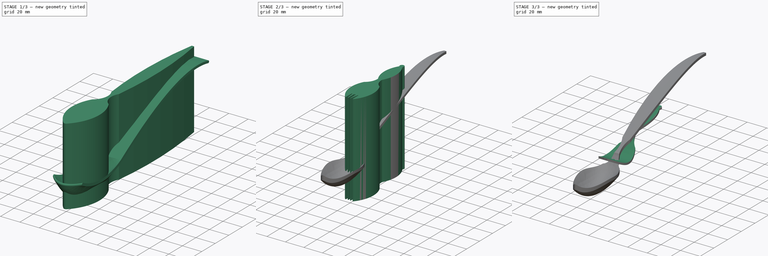
[diagram: build sequence overview — one tinted view per stage of 3, left to right]
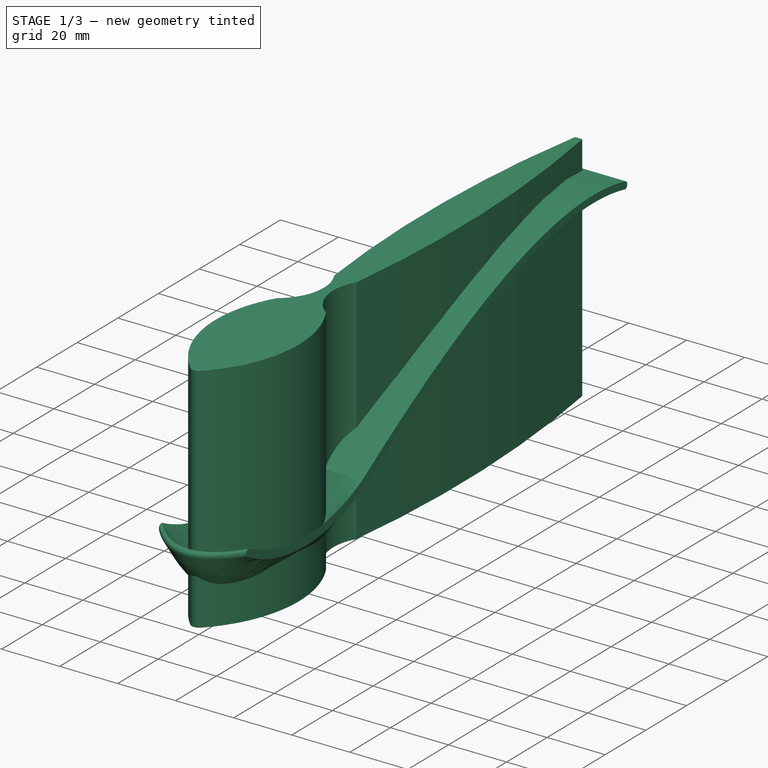
[diagram: stage 1 of 3 — iso view after this stage's code; geometry added in this stage tinted green]
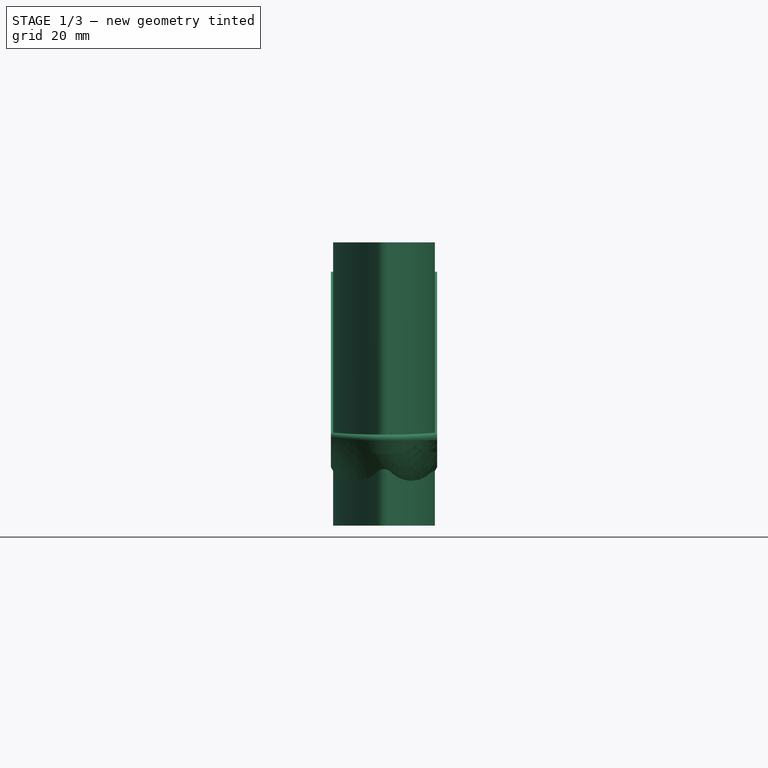
[diagram: stage 1 of 3 — front view after this stage's code; geometry added in this stage tinted green]
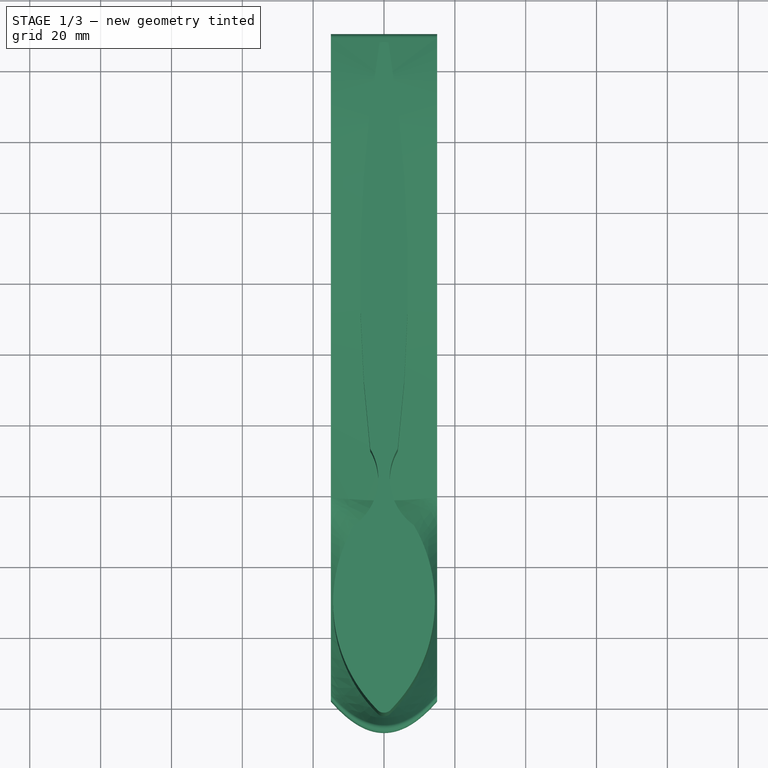
[diagram: stage 1 of 3 — top view after this stage's code; geometry added in this stage tinted green]
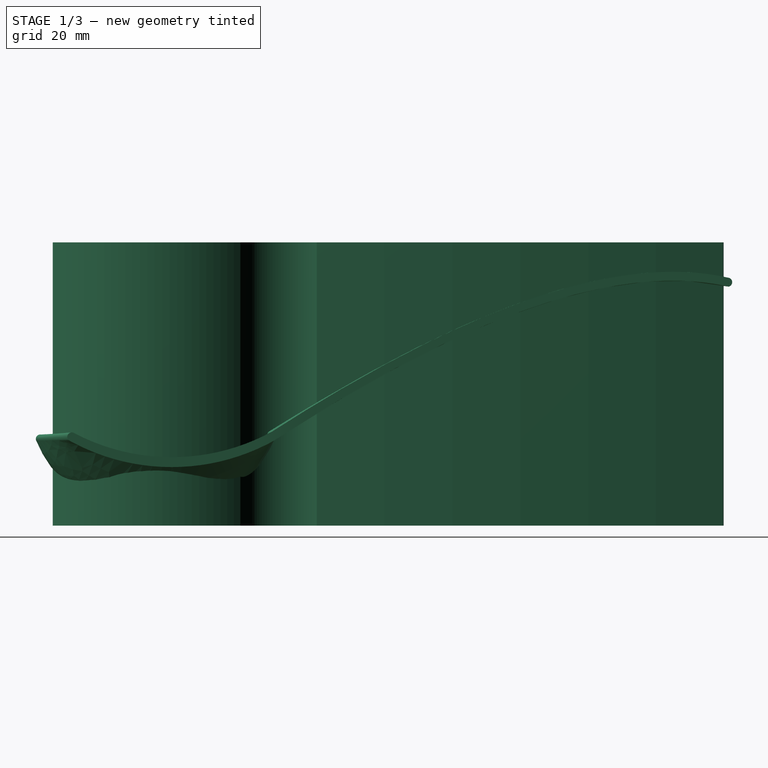
[diagram: stage 1 of 3 — right view after this stage's code; geometry added in this stage tinted green]
FCSTD DOCUMENT  (FreeCAD 0.21RUnknown)
Label: part15
License: All rights reserved
LicenseURL: http://en.wikipedia.org/wiki/All_rights_reserved
objects: Sketcher::SketchObject×6, Part::Extrusion×4, Part::MultiCommon×2, Part::Loft×1
note: 13 computed .brp shape members not serialized (recipe doc carries the construction recipe); baked Part::Feature solids carry a one-line shape summary decoded from their .brp

FEATURE [Sketcher::SketchObject] Sketch002  label="right"
  FullyConstrained = false
  Placement = pos=(-15,0,0) rot=(0.57735,0.57735,0.57735;2.0944rad)
  sketch-geometry (18):
    g0: ArcOfCircle CenterX=-28.8376 CenterY=52.0292 CenterZ=0 NormalX=0 NormalY=0 NormalZ=1 AngleXU=0 Radius=59.4865 StartAngle=4.20628 EndAngle=5.2185
    g1-g4: Circle x4 (B-spline internal-alignment scaffolding for g5; pole/knot coordinates omitted)
    g5: BSplineCurve PolesCount=4 KnotsCount=2 Degree=3 IsPeriodic=0
    g6: GeomPoint X=0 Y=0 Z=0
    g7: GeomPoint X=128.407 Y=43.4848 Z=0
    g8: ArcOfCircle CenterX=-28.8376 CenterY=54.5292 CenterZ=0 NormalX=0 NormalY=0 NormalZ=1 AngleXU=0 Radius=59.1852 StartAngle=4.22634 EndAngle=5.20923
    g9-g12: Circle x4 (B-spline internal-alignment scaffolding for g13; pole/knot coordinates omitted)
    g13: BSplineCurve PolesCount=4 KnotsCount=2 Degree=3 IsPeriodic=0
    g14: GeomPoint X=-0.626922 Y=2.5 Z=0
    g15: GeomPoint X=128.407 Y=45.9848 Z=0
    g16: ArcOfCircle CenterX=-57.0693 CenterY=1.09335 CenterZ=0 NormalX=0 NormalY=0 NormalZ=1 AngleXU=0 Radius=1.25006 StartAngle=1.08474 EndAngle=4.20628
    g17: ArcOfCircle CenterX=128.1 CenterY=44.7348 CenterZ=0 NormalX=0 NormalY=0 NormalZ=1 AngleXU=0 Radius=1.28724 StartAngle=4.95352 EndAngle=7.61285
  constraints (31):
    c: PointOnObject(g0,g-1)
    c: Coincident(g0,g-1)
    c: Weight(g1) = 1
    c: Coincident(g5,g0)
    c: Equal(g1,g2)
    c: Equal(g1,g3)
    c: Equal(g1,g4)
    c: InternalAlignment(g1-g4 -> g5) x4
    c: InternalAlignment(g6,g5)
    c: InternalAlignment(g7,g5)
    c: Weight(g9) = 1
    c: Coincident(g13,g8)
    c: Equal(g9,g10)
    c: Equal(g9,g11)
    c: Equal(g9,g12)
    c: InternalAlignment(g9-g12 -> g13) x4
    c: InternalAlignment(g14,g13)
    c: InternalAlignment(g15,g13)
    c: Tangent(g16,g8) = 1.5708
    c: Tangent(g16,g0) = -1.5708
    c: Distance(g0,g8) = 2.5
    c: DistanceY(g0,g8) = 2.5
    c: Coincident(g17,g5)
    c: Coincident(g17,g13)
    c: DistanceY(g5,g13) = 2.5
    c: Vertical(g5,g13)
    c: DistanceY(g3,g11) = 2.5
    c: DistanceY(g2,g10) = 2.5
    c: Vertical(g10,g2)
    c: Vertical(g0,g8)
    c: DistanceY(g0,g8) = 2.5
FEATURE [Sketcher::SketchObject] Sketch003  label="middle"
  FullyConstrained = false
  Placement = pos=(0,0,0) rot=(0.57735,0.57735,0.57735;2.0944rad)
  sketch-geometry (18):
    g0: ArcOfCircle CenterX=-33.556 CenterY=14.123 CenterZ=0 NormalX=0 NormalY=0 NormalZ=1 AngleXU=0 Radius=36.4069 StartAngle=3.53997 EndAngle=5.88481
    g1-g4: Circle x4 (B-spline internal-alignment scaffolding for g5; pole/knot coordinates omitted)
    g5: BSplineCurve PolesCount=4 KnotsCount=2 Degree=3 IsPeriodic=0
    g6: GeomPoint X=0 Y=0 Z=0
    g7: GeomPoint X=128.407 Y=43.4848 Z=0
    g8: ArcOfCircle CenterX=-33.556 CenterY=16.623 CenterZ=0 NormalX=0 NormalY=0 NormalZ=1 AngleXU=0 Radius=34.9488 StartAngle=3.60366 EndAngle=5.86719
    g9-g12: Circle x4 (B-spline internal-alignment scaffolding for g13; pole/knot coordinates omitted)
    g13: BSplineCurve PolesCount=4 KnotsCount=2 Degree=3 IsPeriodic=0
    g14: GeomPoint X=-1.58782 Y=2.5 Z=0
    g15: GeomPoint X=128.407 Y=45.9848 Z=0
    g16: ArcOfCircle CenterX=-65.9592 CenterY=0.485146 CenterZ=0 NormalX=0 NormalY=0 NormalZ=1 AngleXU=0 Radius=1.25063 StartAngle=0.462071 EndAngle=3.53997
    g17: ArcOfCircle CenterX=128.1 CenterY=44.7348 CenterZ=0 NormalX=0 NormalY=0 NormalZ=1 AngleXU=0 Radius=1.28724 StartAngle=4.95352 EndAngle=7.61285
  constraints (31):
    c: PointOnObject(g0,g-1)
    c: Coincident(g0,g-1)
    c: Weight(g1) = 1
    c: Coincident(g5,g0)
    c: Equal(g1,g2)
    c: Equal(g1,g3)
    c: Equal(g1,g4)
    c: InternalAlignment(g1-g4 -> g5) x4
    c: InternalAlignment(g6,g5)
    c: InternalAlignment(g7,g5)
    c: Weight(g9) = 1
    c: Coincident(g13,g8)
    c: Equal(g9,g10)
    c: Equal(g9,g11)
    c: Equal(g9,g12)
    c: InternalAlignment(g9-g12 -> g13) x4
    c: InternalAlignment(g14,g13)
    c: InternalAlignment(g15,g13)
    c: Tangent(g16,g8) = 1.5708
    c: Tangent(g16,g0) = -1.5708
    c: Distance(g0,g8) = 2.5
    c: DistanceY(g0,g8) = 2.5
    c: Coincident(g17,g5)
    c: Coincident(g17,g13)
    c: DistanceY(g5,g13) = 2.5
    c: Vertical(g5,g13)
    c: DistanceY(g3,g11) = 2.5
    c: DistanceY(g2,g10) = 2.5
    c: Vertical(g10,g2)
    c: Vertical(g0,g8)
    c: DistanceY(g0,g8) = 2.5
FEATURE [Sketcher::SketchObject] Sketch004  label="left"
  FullyConstrained = false
  Placement = pos=(15,0,0) rot=(0.57735,0.57735,0.57735;2.0944rad)
  sketch-geometry (18):
    g0: ArcOfCircle CenterX=-28.8376 CenterY=52.0292 CenterZ=0 NormalX=0 NormalY=0 NormalZ=1 AngleXU=0 Radius=59.4865 StartAngle=4.20628 EndAngle=5.2185
    g1-g4: Circle x4 (B-spline internal-alignment scaffolding for g5; pole/knot coordinates omitted)
    g5: BSplineCurve PolesCount=4 KnotsCount=2 Degree=3 IsPeriodic=0
    g6: GeomPoint X=0 Y=0 Z=0
    g7: GeomPoint X=128.407 Y=43.4848 Z=0
    g8: ArcOfCircle CenterX=-28.8376 CenterY=54.5292 CenterZ=0 NormalX=0 NormalY=0 NormalZ=1 AngleXU=0 Radius=59.1852 StartAngle=4.22634 EndAngle=5.20923
    g9-g12: Circle x4 (B-spline internal-alignment scaffolding for g13; pole/knot coordinates omitted)
    g13: BSplineCurve PolesCount=4 KnotsCount=2 Degree=3 IsPeriodic=0
    g14: GeomPoint X=-0.626922 Y=2.5 Z=0
    g15: GeomPoint X=128.407 Y=45.9848 Z=0
    g16: ArcOfCircle CenterX=-57.0693 CenterY=1.09335 CenterZ=0 NormalX=0 NormalY=0 NormalZ=1 AngleXU=0 Radius=1.25006 StartAngle=1.08474 EndAngle=4.20628
    g17: ArcOfCircle CenterX=128.1 CenterY=44.7348 CenterZ=0 NormalX=0 NormalY=0 NormalZ=1 AngleXU=0 Radius=1.28724 StartAngle=4.95352 EndAngle=7.61285
  constraints (31):
    c: PointOnObject(g0,g-1)
    c: Coincident(g0,g-1)
    c: Weight(g1) = 1
    c: Coincident(g5,g0)
    c: Equal(g1,g2)
    c: Equal(g1,g3)
    c: Equal(g1,g4)
    c: InternalAlignment(g1-g4 -> g5) x4
    c: InternalAlignment(g6,g5)
    c: InternalAlignment(g7,g5)
    c: Weight(g9) = 1
    c: Coincident(g13,g8)
    c: Equal(g9,g10)
    c: Equal(g9,g11)
    c: Equal(g9,g12)
    c: InternalAlignment(g9-g12 -> g13) x4
    c: InternalAlignment(g14,g13)
    c: InternalAlignment(g15,g13)
    c: Tangent(g16,g8) = 1.5708
    c: Tangent(g16,g0) = -1.5708
    c: Distance(g0,g8) = 2.5
    c: DistanceY(g0,g8) = 2.5
    c: Coincident(g17,g5)
    c: Coincident(g17,g13)
    c: DistanceY(g5,g13) = 2.5
    c: Vertical(g5,g13)
    c: DistanceY(g3,g11) = 2.5
    c: DistanceY(g2,g10) = 2.5
    c: Vertical(g10,g2)
    c: Vertical(g0,g8)
    c: DistanceY(g0,g8) = 2.5
FEATURE [Part::Loft] Loft
  Closed = false
  MaxDegree = 5
  Ruled = false
  Sections = -> [Sketch002,Sketch003,Sketch004]
  Solid = true
FEATURE [Sketcher::SketchObject] Sketch005
  ExternalGeometry = -> [Sketch003]
  FullyConstrained = false
  Placement = pos=(0,0,56) rot=(0,0,1;0rad)
  sketch-geometry (8):
    g0: ArcOfCircle CenterX=400.62 CenterY=60.2529 CenterZ=0 NormalX=0 NormalY=0 NormalZ=1 AngleXU=0 Radius=407.357 StartAngle=2.97738 EndAngle=3.26009
    g1: ArcOfCircle CenterX=-17.9403 CenterY=3.79796 CenterZ=0 NormalX=0 NormalY=0 NormalZ=1 AngleXU=0 Radius=16.3255 StartAngle=5.33423 EndAngle=6.81635
    g2: ArcOfCircle CenterX=28.6713 CenterY=-31.279 CenterZ=0 NormalX=0 NormalY=0 NormalZ=1 AngleXU=0 Radius=43.0358 StartAngle=2.61021 EndAngle=3.92842
    g3: ArcOfCircle CenterX=-398.742 CenterY=60.2958 CenterZ=0 NormalX=0 NormalY=0 NormalZ=1 AngleXU=0 Radius=405.498 StartAngle=6.16404 EndAngle=6.44805
    g4: ArcOfCircle CenterX=17.9725 CenterY=3.80476 CenterZ=0 NormalX=0 NormalY=0 NormalZ=1 AngleXU=0 Radius=16.3499 StartAngle=2.60978 EndAngle=4.08919
    g5: ArcOfCircle CenterX=-28.6713 CenterY=-31.279 CenterZ=0 NormalX=0 NormalY=0 NormalZ=1 AngleXU=0 Radius=43.0358 StartAngle=5.49636 EndAngle=6.81457
    g6: ArcOfCircle CenterX=-3e-16 CenterY=-59.8598 CenterZ=0 NormalX=0 NormalY=0 NormalZ=1 AngleXU=0 Radius=2.55554 StartAngle=3.97614 EndAngle=5.44863
    g7: ArcOfCircle CenterX=-3.3e-15 CenterY=120.297 CenterZ=0 NormalX=0 NormalY=0 NormalZ=1 AngleXU=0 Radius=6.66858 StartAngle=1.38113 EndAngle=1.76046
  constraints (13):
    c: Coincident(g1,g0)
    c: Coincident(g2,g1)
    c: Coincident(g4,g3)
    c: Coincident(g5,g4)
    c: Symmetric(g0,g3,g-2)
    c: Symmetric(g1,g4,g-2)
    c: Symmetric(g5,g2,g-2)
    c: Symmetric(g0,g3,g-2)
    c: Coincident(g6,g2)
    c: Coincident(g6,g5)
    c: Horizontal(g2,g5)
    c: Coincident(g7,g0)
    c: Coincident(g7,g3)
FEATURE [Part::Extrusion] Extrude003
  Base = -> Sketch005
  Dir = (0,0,1)
  DirMode = 2
  FaceMakerClass = Part::FaceMakerBullseye
  LengthFwd = 80
  LengthRev = 0
  Reversed = true
  Solid = true
  Symmetric = false
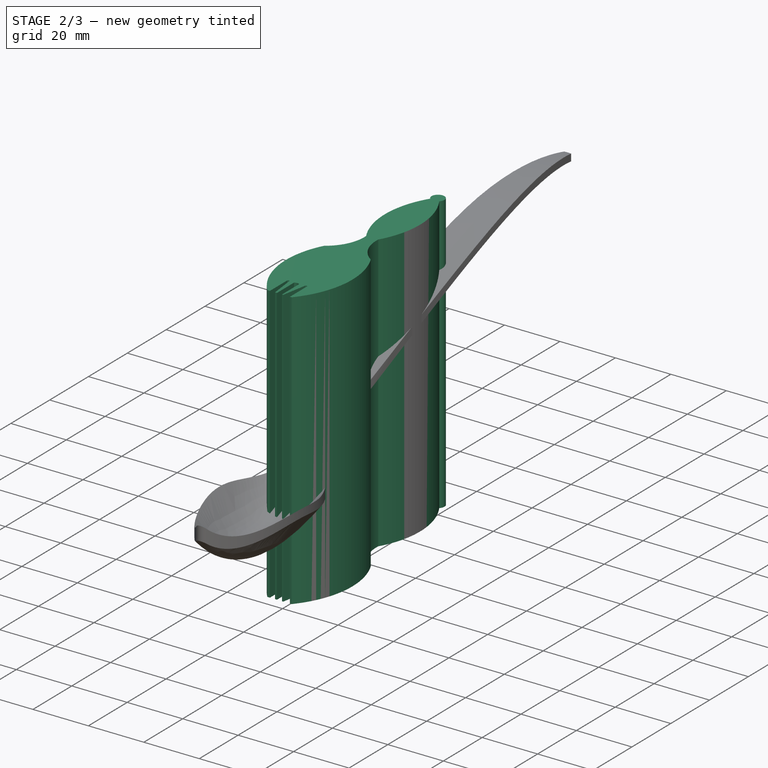
[diagram: stage 2 of 3 — iso view after this stage's code; geometry added in this stage tinted green]
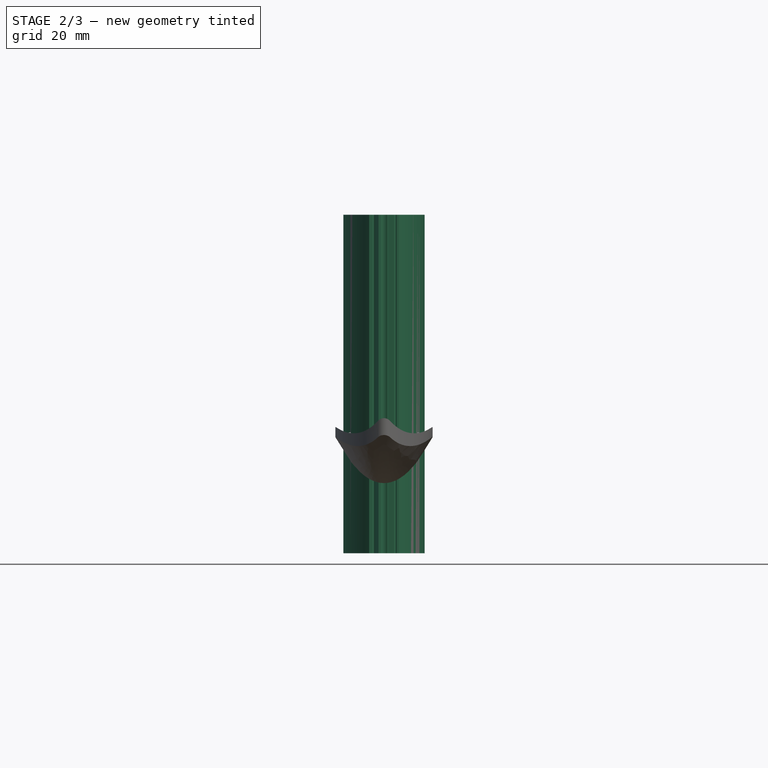
[diagram: stage 2 of 3 — front view after this stage's code; geometry added in this stage tinted green]
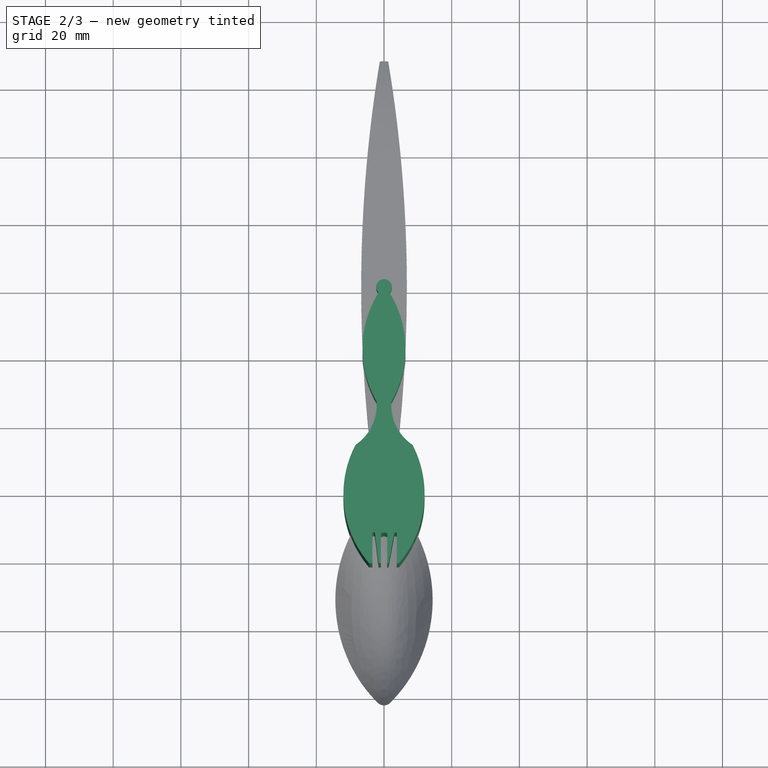
[diagram: stage 2 of 3 — top view after this stage's code; geometry added in this stage tinted green]
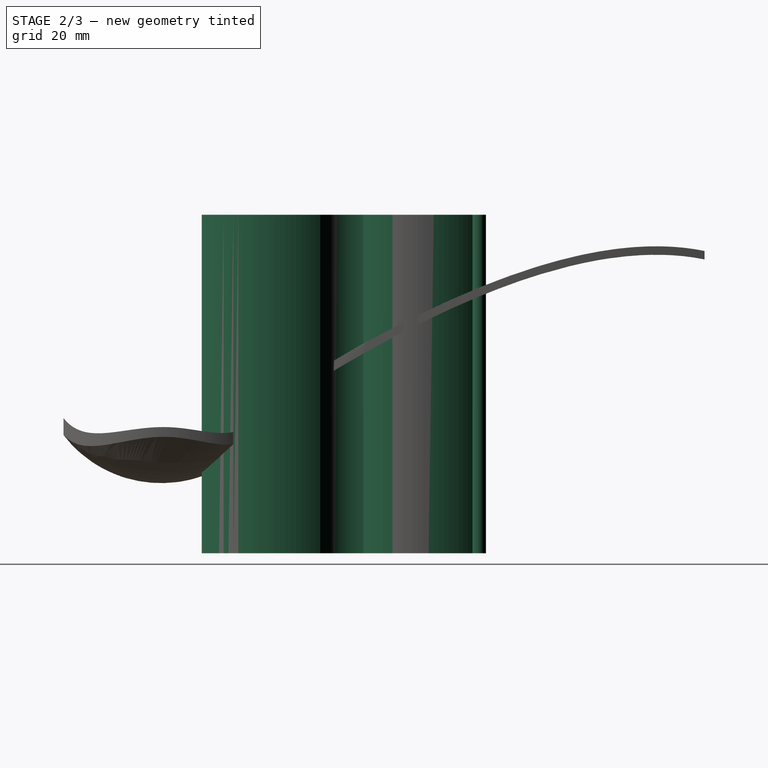
[diagram: stage 2 of 3 — right view after this stage's code; geometry added in this stage tinted green]
FEATURE [Sketcher::SketchObject] Sketch001
  FullyConstrained = false
  Placement = pos=(0,0,57) rot=(0,0,1;0rad)
  sketch-geometry (21):
    g0: LineSegment StartX=-35 StartY=18.8986 StartZ=0 EndX=41.4381 EndY=18.8986 EndZ=0
    g1: ArcOfCircle CenterX=25.002 CenterY=41.8194 CenterZ=0 NormalX=0 NormalY=0 NormalZ=1 AngleXU=0 Radius=31.3664 StartAngle=2.58439 EndAngle=3.66288
    g2: ArcOfCircle CenterX=-16.2727 CenterY=25.1647 CenterZ=0 NormalX=0 NormalY=0 NormalZ=1 AngleXU=0 Radius=14.1123 StartAngle=5.30329 EndAngle=6.35655
    g3: ArcOfCircle CenterX=19.3549 CenterY=-1.10168 CenterZ=0 NormalX=0 NormalY=0 NormalZ=1 AngleXU=0 Radius=31.3454 StartAngle=2.65899 EndAngle=3.85278
    g4: LineSegment StartX=-4.39194 StartY=-21.5619 StartZ=0 EndX=-3.45118 EndY=-21.5619 EndZ=0
    g5: LineSegment StartX=-3.45118 StartY=-21.5619 StartZ=0 EndX=-3.45118 EndY=-12.7227 EndZ=0
    g6: ArcOfCircle CenterX=-3.06126 CenterY=-12.7696 CenterZ=0 NormalX=0 NormalY=0 NormalZ=1 AngleXU=0 Radius=0.392739 StartAngle=0.119739 EndAngle=3.02185
    g7: LineSegment StartX=-2.67133 StartY=-12.7227 StartZ=0 EndX=-1.60784 EndY=-21.5619 EndZ=0
    g8: LineSegment StartX=-1.60784 StartY=-21.5619 StartZ=0 EndX=-0.918812 EndY=-21.5619 EndZ=0
    g9: LineSegment StartX=-0.918812 StartY=-21.5619 StartZ=0 EndX=-0.918812 EndY=-12.7227 EndZ=0
    g10: ArcOfCircle CenterX=-25.002 CenterY=41.8194 CenterZ=0 NormalX=0 NormalY=0 NormalZ=1 AngleXU=0 Radius=31.3664 StartAngle=5.7619 EndAngle=6.84039
    g11: ArcOfCircle CenterX=16.2727 CenterY=25.1647 CenterZ=0 NormalX=0 NormalY=0 NormalZ=1 AngleXU=0 Radius=14.1123 StartAngle=3.06823 EndAngle=4.12148
    g12: ArcOfCircle CenterX=-19.3549 CenterY=-1.10168 CenterZ=0 NormalX=0 NormalY=0 NormalZ=1 AngleXU=0 Radius=31.3454 StartAngle=5.572 EndAngle=6.76579
    g13: LineSegment StartX=4.39194 StartY=-21.5619 StartZ=0 EndX=3.75096 EndY=-21.5619 EndZ=0
    g14: LineSegment StartX=3.75096 StartY=-21.5619 StartZ=0 EndX=3.75096 EndY=-12.7227 EndZ=0
    g15: ArcOfCircle CenterX=3.3646 CenterY=-12.7932 CenterZ=0 NormalX=0 NormalY=0 NormalZ=1 AngleXU=0 Radius=0.392739 StartAngle=0.180447 EndAngle=2.96115
    g16: LineSegment StartX=2.97823 StartY=-12.7227 StartZ=0 EndX=1.36569 EndY=-21.5619 EndZ=0
    g17: LineSegment StartX=1.36569 StartY=-21.5619 StartZ=0 EndX=0.918812 EndY=-21.5619 EndZ=0
    g18: LineSegment StartX=0.918812 StartY=-21.5619 StartZ=0 EndX=0.918812 EndY=-12.7227 EndZ=0
    g19: ArcOfCircle CenterX=0 CenterY=-14.1529 CenterZ=0 NormalX=0 NormalY=0 NormalZ=1 AngleXU=0 Radius=1.6999 StartAngle=0.999754 EndAngle=2.14184
    g20: ArcOfCircle CenterX=0 CenterY=60.0758 CenterZ=0 NormalX=0 NormalY=0 NormalZ=1 AngleXU=0 Radius=2.32603 StartAngle=5.4827 EndAngle=10.2253
  constraints (48):
    c: Horizontal(g0)
    c: DistanceX(g0,g-1) = 35
    c: Coincident(g2,g1)
    c: Coincident(g3,g2)
    c: Coincident(g3,g4)
    c: Coincident(g4,g5)
    c: Vertical(g5)
    c: Horizontal(g4)
    c: Coincident(g6,g5)
    c: Coincident(g7,g8)
    c: Horizontal(g8)
    c: Coincident(g8,g9)
    c: Vertical(g9)
    c: Horizontal(g5,g6)
    c: Horizontal(g6,g9)
    c: Horizontal(g7,g4)
    c: Coincident(g11,g10)
    c: Coincident(g12,g11)
    c: Coincident(g12,g13)
    c: Coincident(g13,g14)
    c: Vertical(g14)
    c: Horizontal(g13)
    c: Coincident(g15,g14)
    c: Coincident(g16,g17)
    c: Horizontal(g17)
    c: Coincident(g17,g18)
    c: Vertical(g18)
    c: Tangent(g15,g16) = -1.5708
    c: Tangent(g6,g7) = 1.5708
    c: Horizontal(g14,g15)
    c: Horizontal(g15,g18)
    c: Horizontal(g18,g9)
    c: Horizontal(g10,g1)
    c: Horizontal(g3,g12)
    c: Horizontal(g12,g16)
    c: Horizontal(g16,g8)
    c: Equal(g15,g6)
    c: Coincident(g19,g18)
    c: Coincident(g19,g9)
    c: PointOnObject(g19,g-2)
    c: Coincident(g20,g10)
    c: Coincident(g20,g1)
    c: PointOnObject(g20,g-2)
    c: Equal(g1,g10)
    c: Equal(g12,g3)
    c: Equal(g11,g2)
    c: Symmetric(g10,g1,g-2)
    c: Symmetric(g11,g2,g-2)
FEATURE [Part::Extrusion] Extrude002
  Base = -> Sketch001
  Dir = (0,0,1)
  DirMode = 2
  FaceMakerClass = Part::FaceMakerBullseye
  LengthFwd = 100
  LengthRev = 0
  Reversed = true
  Solid = true
  Symmetric = false
FEATURE [Part::MultiCommon] Common001
  Shapes = -> [Loft,Extrude003]
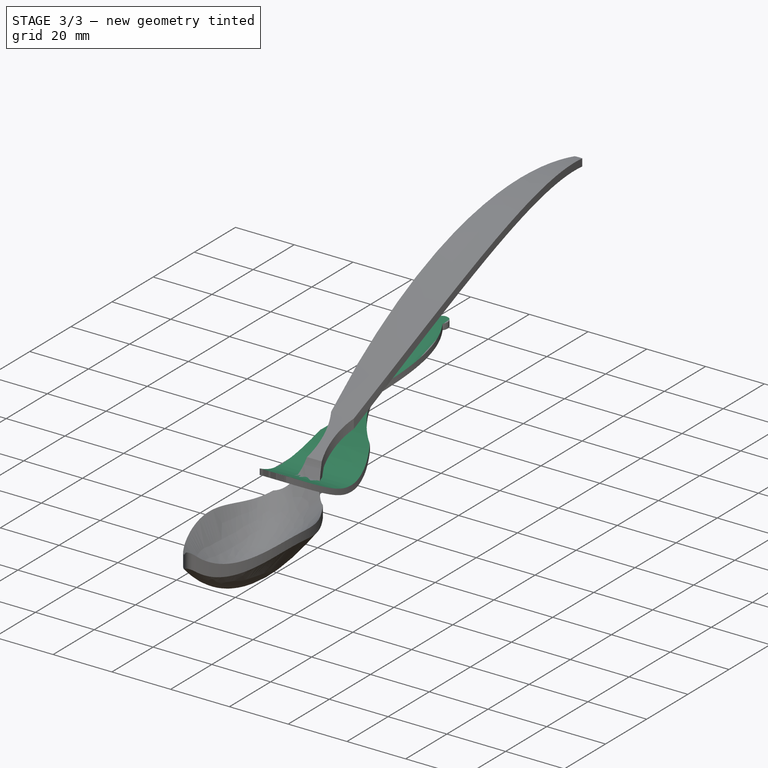
[diagram: stage 3 of 3 — iso view after this stage's code; geometry added in this stage tinted green]
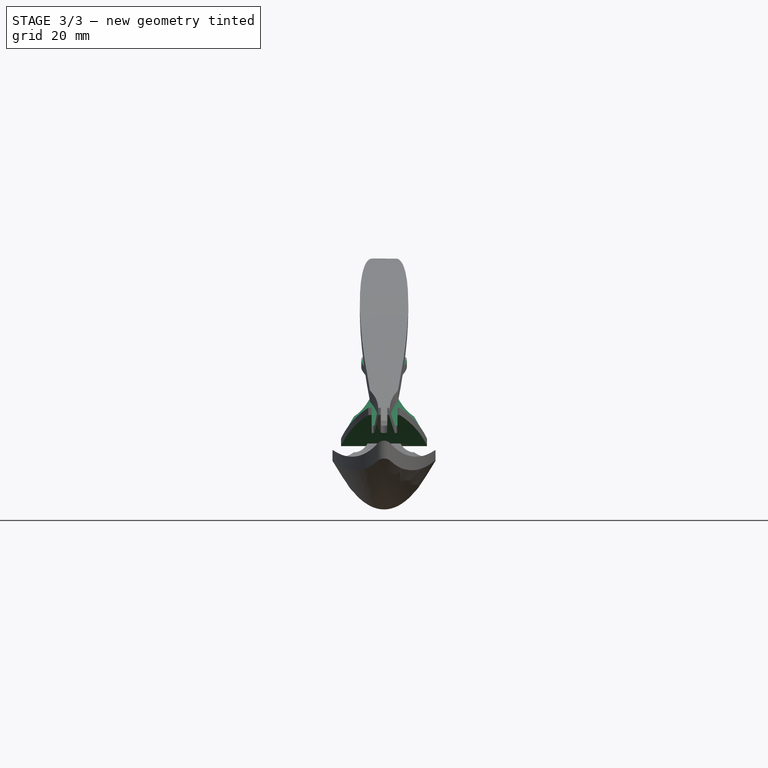
[diagram: stage 3 of 3 — front view after this stage's code; geometry added in this stage tinted green]
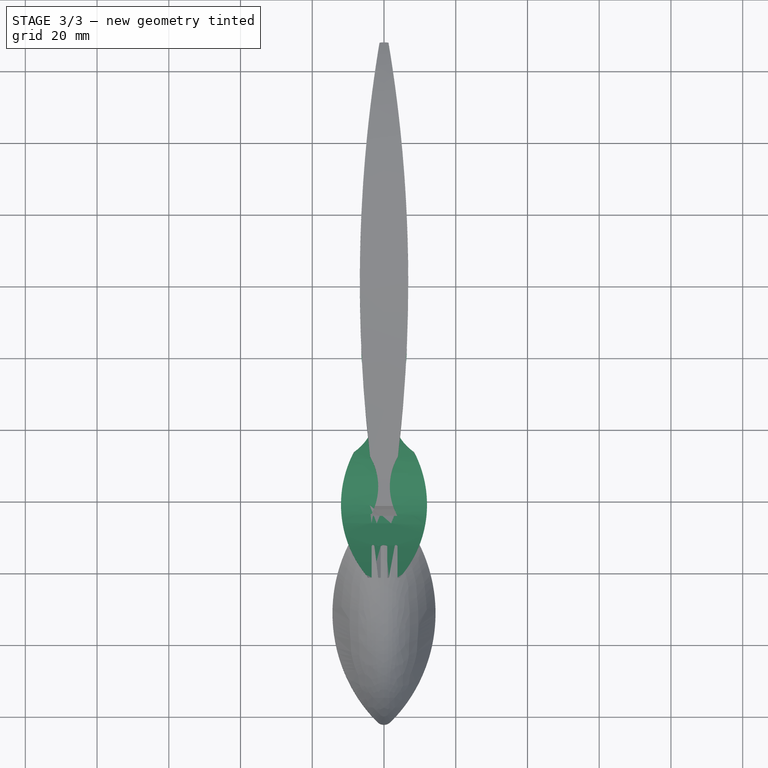
[diagram: stage 3 of 3 — top view after this stage's code; geometry added in this stage tinted green]
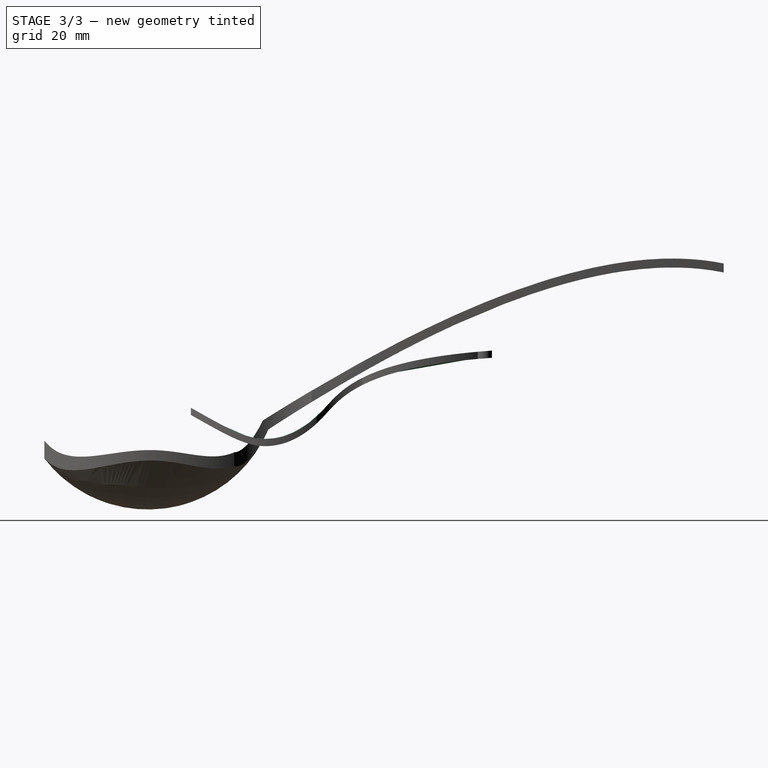
[diagram: stage 3 of 3 — right view after this stage's code; geometry added in this stage tinted green]
FEATURE [Sketcher::SketchObject] Sketch
  FullyConstrained = false
  Placement = pos=(0,0,0) rot=(0.57735,0.57735,0.57735;2.0944rad)
  sketch-geometry (11):
    g0-g5: Circle x6 (B-spline internal-alignment scaffolding for g6; pole/knot coordinates omitted)
    g6: BSplineCurve PolesCount=6 KnotsCount=4 Degree=3 IsPeriodic=0
    g7-g10: GeomPoint x4 (B-spline internal-alignment scaffolding for g6; pole/knot coordinates omitted)
  constraints (4):
    c: Weight(g0) = 1
    c: Equal(g0, g1-g5) x5
    c: InternalAlignment(g0-g5 -> g6) x6
    c: InternalAlignment(g7-g10 -> g6) x4
FEATURE [Part::Extrusion] Extrude
  Base = -> Sketch
  Dir = (0,0,1)
  DirMode = 0
  FaceMakerClass = Part::FaceMakerBullseye
  LengthFwd = 2
  LengthRev = 0
  Solid = false
  Symmetric = false
FEATURE [Part::Extrusion] Extrude001
  Base = -> Extrude
  Dir = (1,0,0)
  DirMode = 0
  FaceMakerClass = Part::FaceMakerBullseye
  LengthFwd = 60
  LengthRev = 0
  Solid = false
  Symmetric = true
FEATURE [Part::MultiCommon] Common  label="Common_fork"
  Shapes = -> [Extrude002,Extrude001]
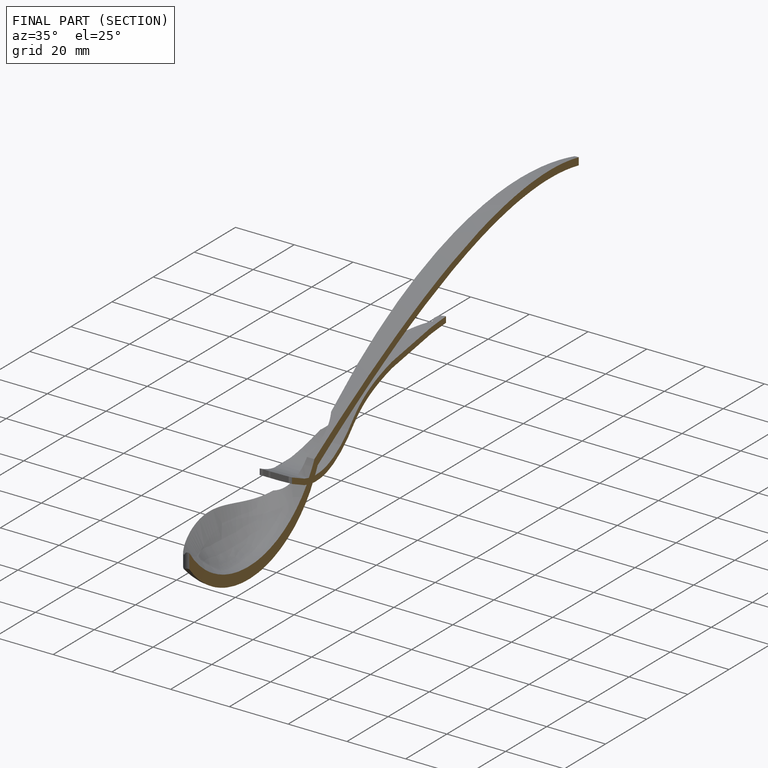
[diagram: finished part — half-section view (interior)]
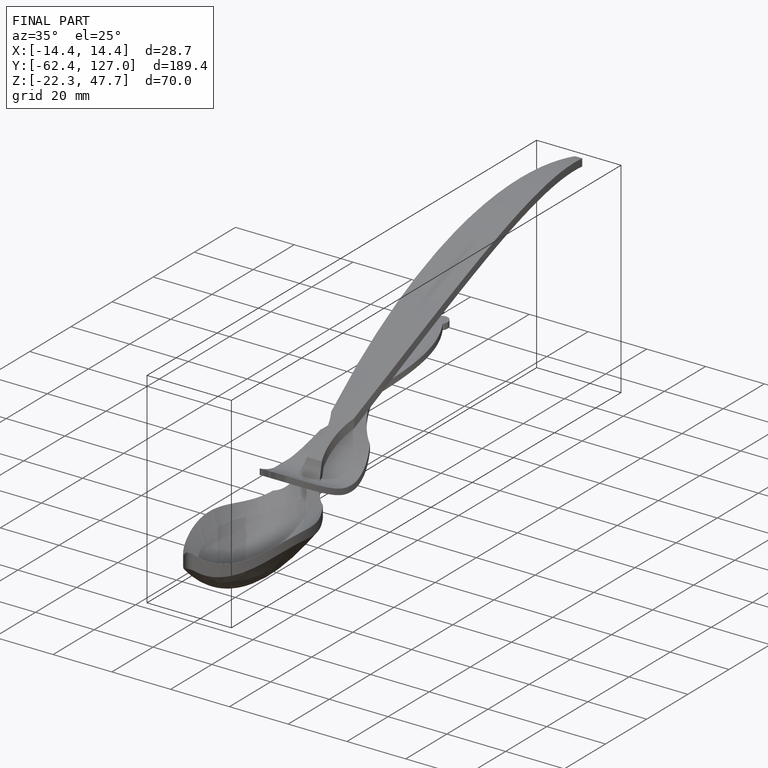
[diagram: finished part — iso view with bounding-box wireframe]
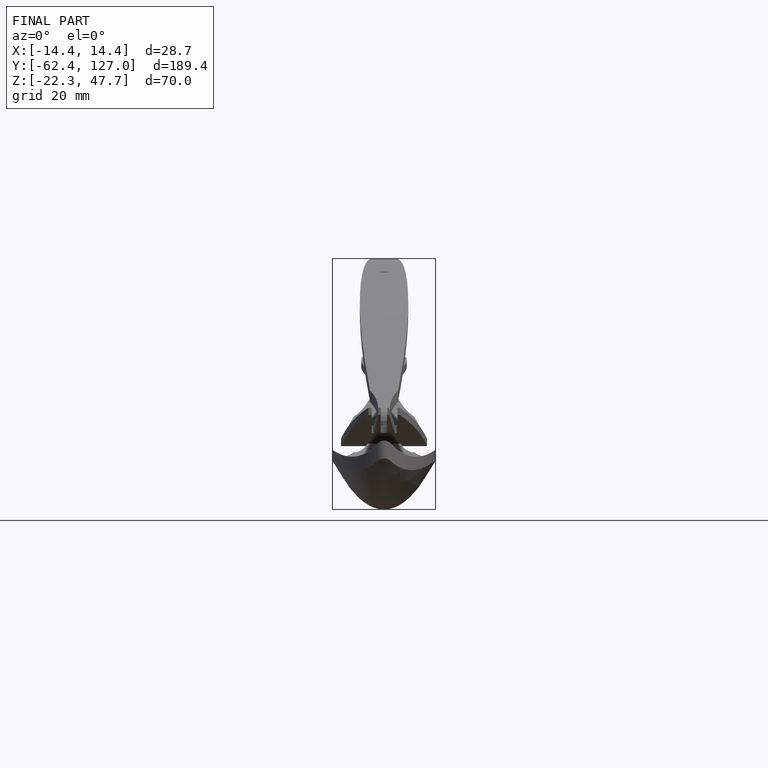
[diagram: finished part — front view with bounding-box wireframe]
